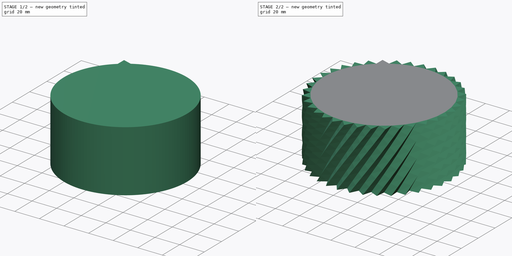
[diagram: build sequence overview — one tinted view per stage of 2, left to right]
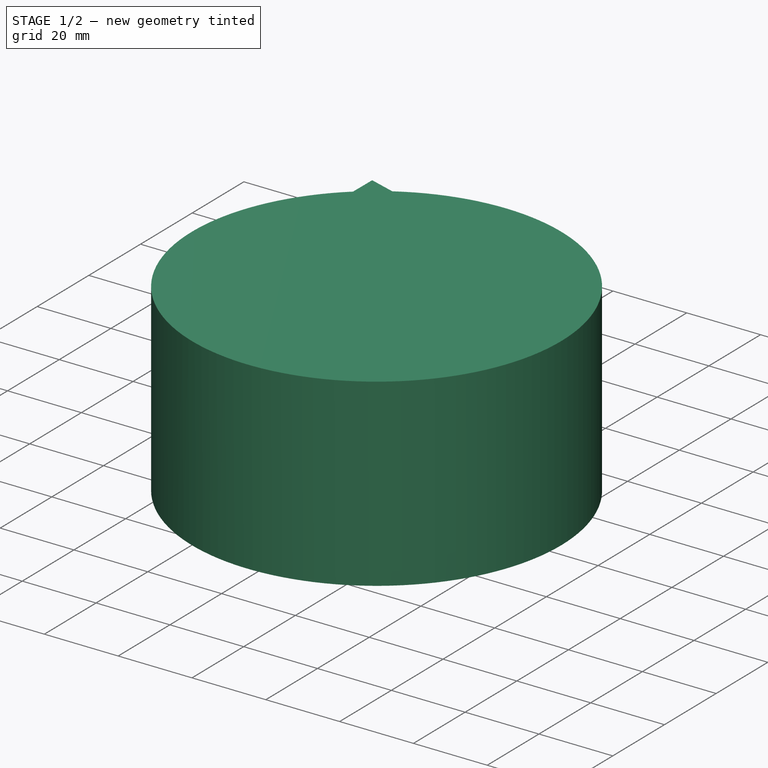
[diagram: stage 1 of 2 — iso view after this stage's code; geometry added in this stage tinted green]
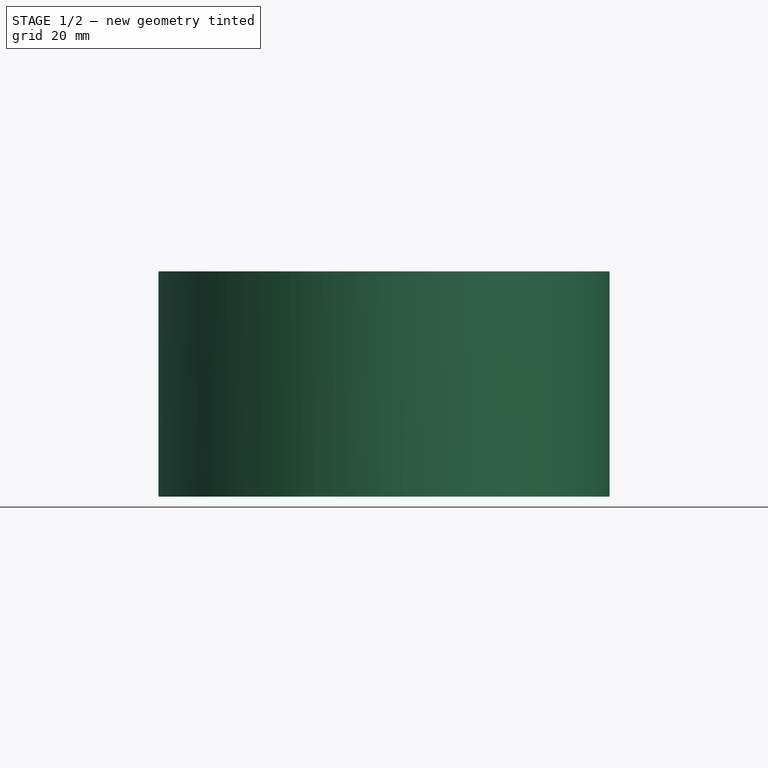
[diagram: stage 1 of 2 — front view after this stage's code; geometry added in this stage tinted green]
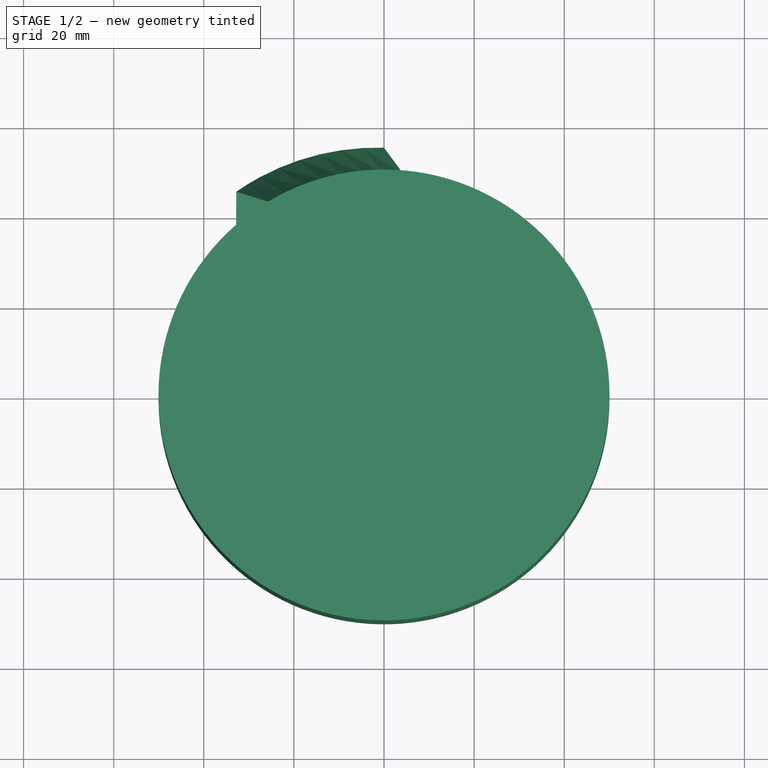
[diagram: stage 1 of 2 — top view after this stage's code; geometry added in this stage tinted green]
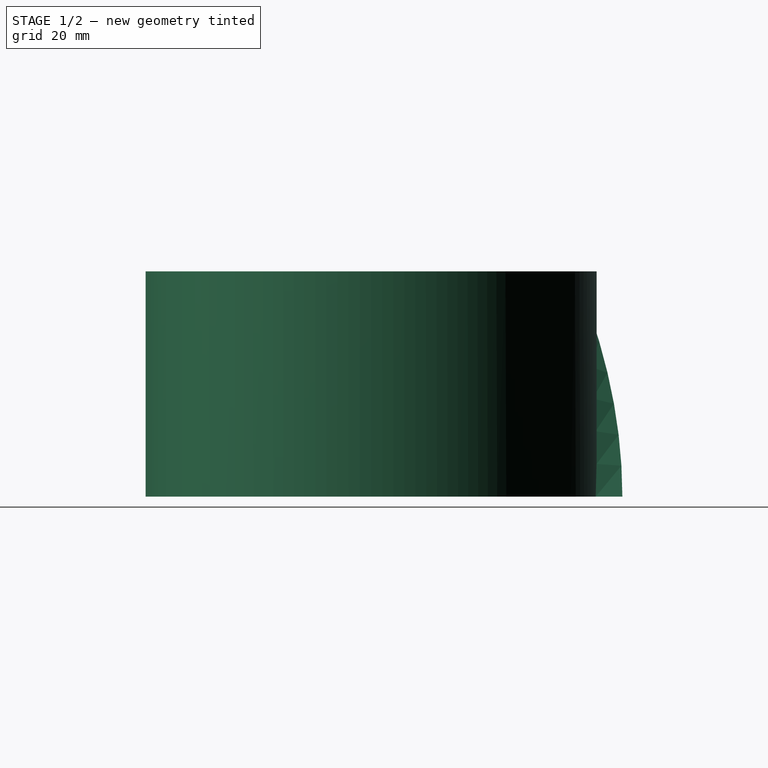
[diagram: stage 1 of 2 — right view after this stage's code; geometry added in this stage tinted green]
FCSTD DOCUMENT  (FreeCAD 1.0R39109 (Git))
Label: LoftHelix_SHALM
License: Creative Commons Attribution-NonCommercial 4.0
LicenseURL: https://creativecommons.org/licenses/by-nc/4.0/
objects: Sketcher::SketchObject×2, PartDesign::Pad×1, PartDesign::AdditiveHelix×1, PartDesign::PolarPattern×1, PartDesign::Body×1
note: 13 computed .brp shape members not serialized (recipe doc carries the construction recipe); baked Part::Feature solids carry a one-line shape summary decoded from their .brp

FEATURE [Sketcher::SketchObject] Sketch
  ArcFitTolerance = 1e-06
  AttachmentSupport = -> [XY_Plane]
  FullyConstrained = false
  MakeInternals = false
  MapMode = 5
  sketch-geometry (7):
    g0: LineSegment [constr] StartX=0 StartY=0 StartZ=0 EndX=4.36202 EndY=49.8582 EndZ=0
    g1: LineSegment StartX=4.36202 StartY=49.8582 StartZ=0 EndX=0 EndY=55.7714 EndZ=0
    g2: LineSegment StartX=0 StartY=55.7714 StartZ=0 EndX=-4.36202 EndY=49.8582 EndZ=0
    g3: LineSegment [constr] StartX=-4.36202 StartY=49.8582 StartZ=0 EndX=0 EndY=0 EndZ=0
    g4: LineSegment StartX=-4.36202 StartY=49.8582 StartZ=0 EndX=-4.36202 EndY=45.2257 EndZ=0
    g5: LineSegment StartX=-4.36202 StartY=45.2257 StartZ=0 EndX=4.36202 EndY=45.2257 EndZ=0
    g6: LineSegment StartX=4.36202 StartY=45.2257 StartZ=0 EndX=4.36202 EndY=49.8582 EndZ=0
  constraints (16):
    c: Coincident(g-1,g0)
    c: Coincident(g0,g1)
    c: PointOnObject(g1,g-2)
    c: Coincident(g1,g2)
    c: Coincident(g2,g3)
    c: Coincident(g3,g0)
    c: Equal(g0,g3)
    c: Equal(g2,g1)
    c: Angle(g0,g3) = 0.174533
    c: Coincident(g2,g4)
    c: Coincident(g4,g5)
    c: Horizontal(g5)
    c: Coincident(g5,g6)
    c: Coincident(g6,g0)
    c: Vertical(g6)
    c: Vertical(g4)
FEATURE [Sketcher::SketchObject] Sketch001
  ArcFitTolerance = 1e-06
  AttachmentSupport = -> [XY_Plane]
  ExternalGeometry = -> [Sketch]
  FullyConstrained = true
  MakeInternals = false
  MapMode = 5
  sketch-geometry (1):
    g0: Circle CenterX=0 CenterY=0 CenterZ=0 NormalX=0 NormalY=0 NormalZ=1 AngleXU=0 Radius=50.0486
  constraints (2):
    c: Coincident(g0,g-1)
    c: PointOnObject(g-3,g0)
FEATURE [PartDesign::Pad] Pad
  Direction = (0,0,1)
  Length = 50
  Length2 = 10
  Profile = -> Sketch001
  ReferenceAxis = -> Sketch001 [N_Axis]
  Refine = true
  Suppressed = false
  Type = 0
FEATURE [PartDesign::AdditiveHelix] AdditiveHelix
  Angle = 0
  Axis = (1e-16,1e-16,1)
  Base = (0,0,0)
  BaseFeature = -> Pad
  Growth = 0
  HasBeenEdited = true
  Height = 50
  LeftHanded = false
  Mode = 2
  Outside = false
  Pitch = 500
  Profile = -> Sketch
  ReferenceAxis = -> Z_Axis
  Refine = true
  Suppressed = false
  Tolerance = 0.1
  Turns = 0.1
  expr: Height = Pad.Length
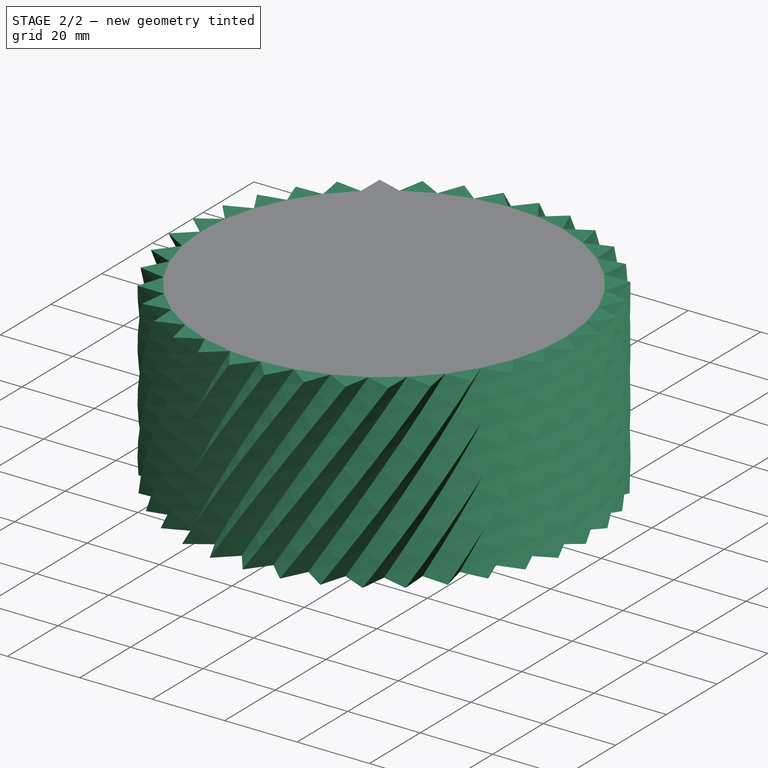
[diagram: stage 2 of 2 — iso view after this stage's code; geometry added in this stage tinted green]
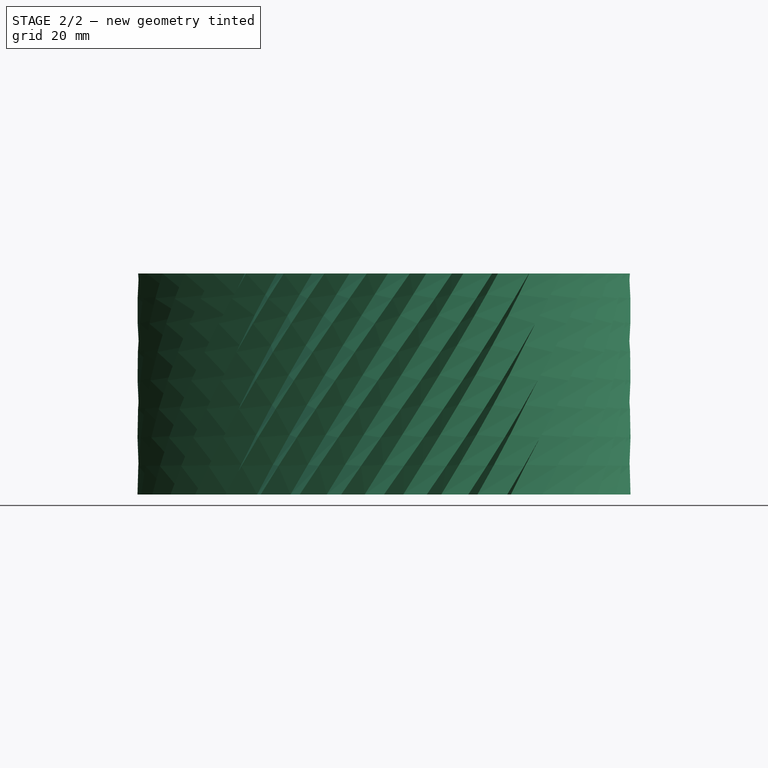
[diagram: stage 2 of 2 — front view after this stage's code; geometry added in this stage tinted green]
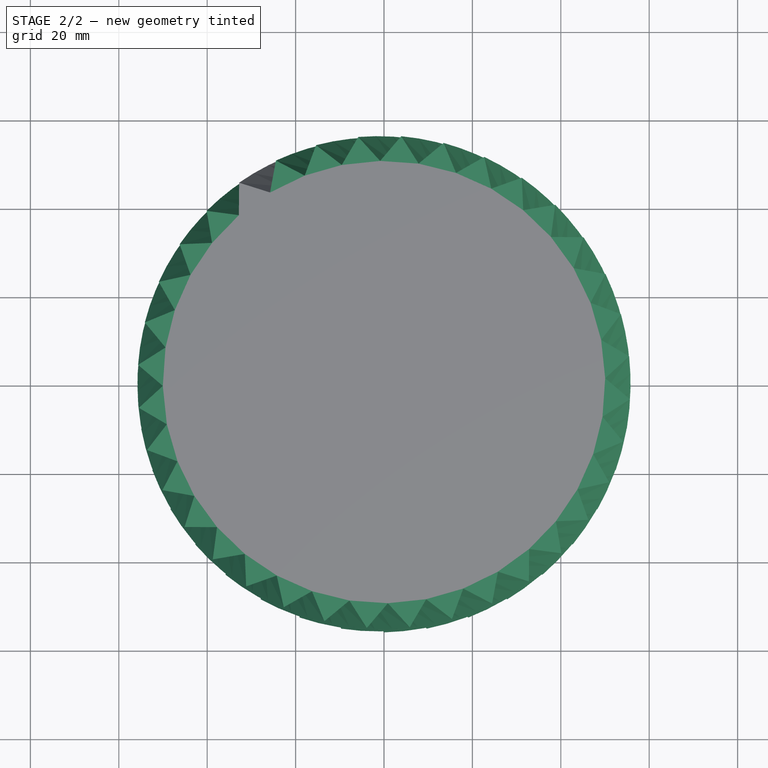
[diagram: stage 2 of 2 — top view after this stage's code; geometry added in this stage tinted green]
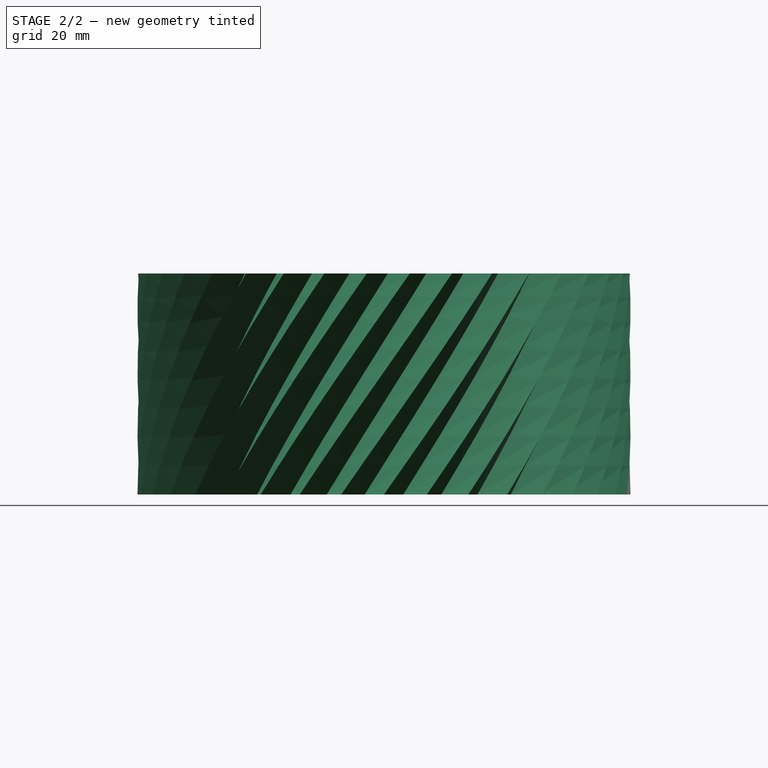
[diagram: stage 2 of 2 — right view after this stage's code; geometry added in this stage tinted green]
FEATURE [PartDesign::PolarPattern] PolarPattern
  Angle = 360
  Axis = -> Sketch [N_Axis]
  BaseFeature = -> AdditiveHelix
  Mode = 0
  Occurrences = 36
  Offset = 120
  Originals = -> [AdditiveHelix]
  Refine = true
  Suppressed = false
  TransformMode = 0
FEATURE [PartDesign::Body] Body
  AllowCompound = false
  Group = -> [Sketch,Sketch001,Pad,AdditiveHelix,PolarPattern]
  Origin = -> Origin
  Tip = -> PolarPattern
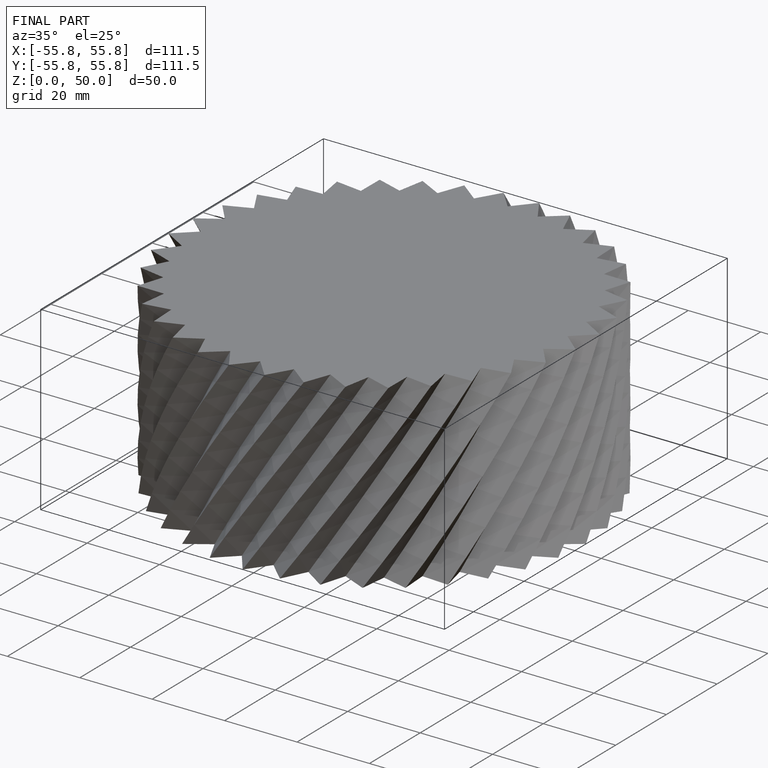
[diagram: finished part — iso view with bounding-box wireframe]
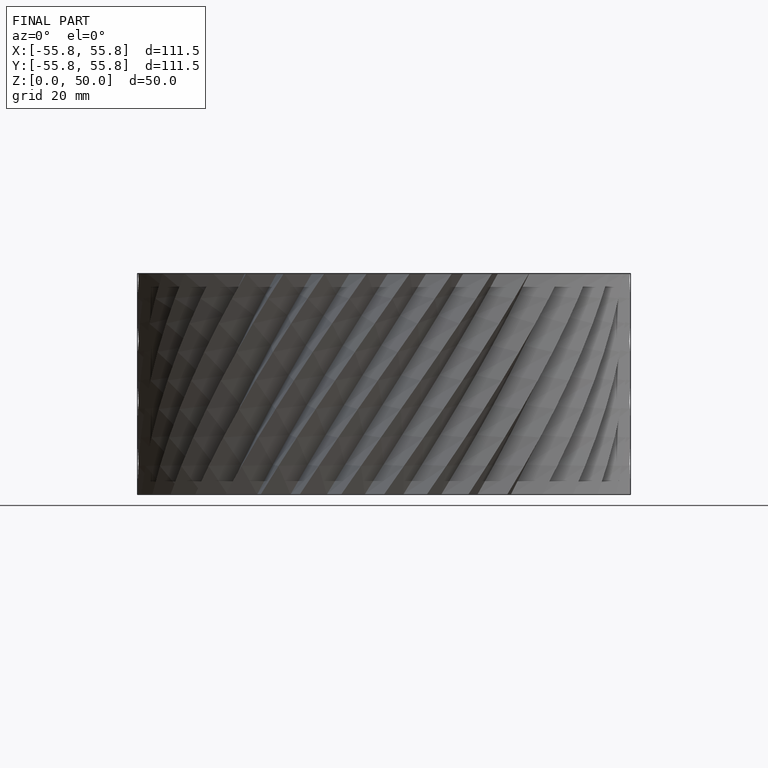
[diagram: finished part — front view with bounding-box wireframe]
